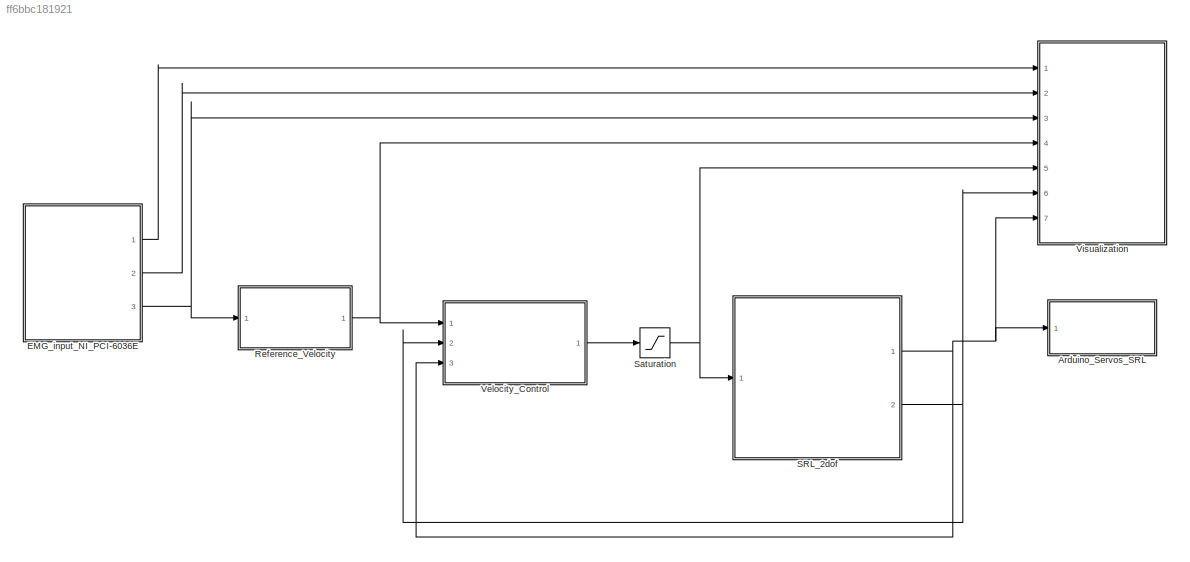
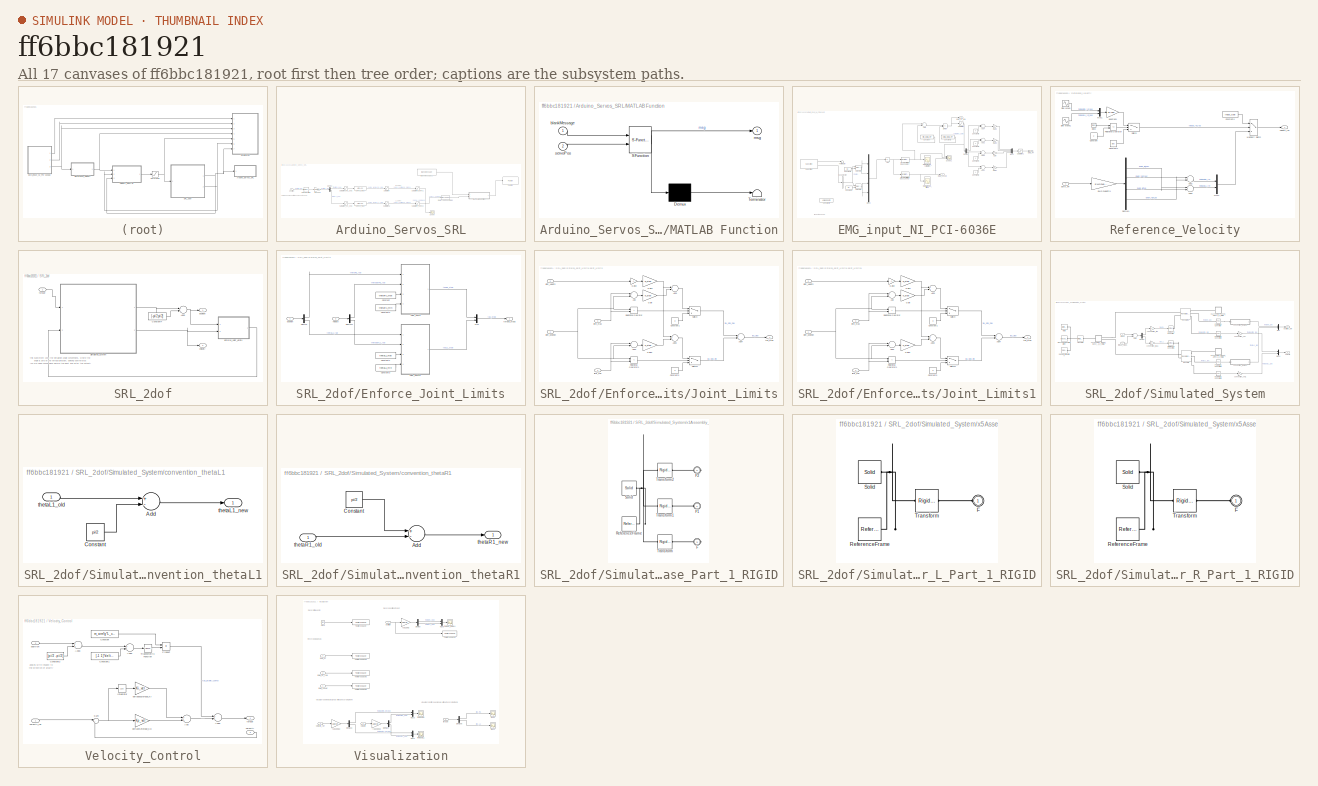
[diagram: thumbnail index - all 17 canvases of the model, root first then tree order]
MODEL slx_ff6bbc181921
KIND model
CONFIG AbsTol = auto
CONFIG EnableMultiTasking = on
CONFIG FixedStep = auto
CONFIG MaxStep = auto
CONFIG MinStep = auto
CONFIG RelTol = 1e-3
CONFIG SampleTimeConstraint = Unconstrained
CONFIG Solver = ode45
CONFIG SolverName = ode45
CONFIG StartTime = 0.0
CONFIG StopTime = T_end
WORKSPACE source: MAT-file member
WORKSPACE SL_ROS_VariableLengthArrays_MaxSizes: struct (value not decoded)
BLOCK [SubSystem] Arduino_Servos_SRL
  LoadFcn = robotics.ros.createSimulinkBus(gcs);
  Ports = [1]
  RequestExecContextInheritance = off
  Variant = off
BLOCK [Reference] Arduino_Servos_SRL/Blank Message1  REF=robotlib/Blank Message
  Ports = [0, 1]
  SourceBlock = robotlib/Blank Message
  SourceLibraryInfo = This block requires Robotics System Toolbox
  SourceProductBaseCode = RO
  SourceProductName = Robotics System Toolbox
  SourceType = ROS Blank Message
BLOCK [DataTypeConversion] Arduino_Servos_SRL/Data Type Conversion
  OutDataTypeStr = int16
  RndMeth = Round
  SaturateOnIntegerOverflow = off
BLOCK [Demux] Arduino_Servos_SRL/Demux
  DisplayOption = bar
  Outputs = 2
  Ports = [1, 2]
BLOCK [SubSystem] Arduino_Servos_SRL/MATLAB Function
  ErrorFcn = Stateflow.Translate.translate
  PermitHierarchicalResolution = ExplicitOnly
  Ports = [2, 1]
  RequestExecContextInheritance = off
  SFBlockType = MATLAB Function
  TreatAsAtomicUnit = on
  Variant = off
BLOCK [Demux] Arduino_Servos_SRL/MATLAB Function/ Demux 
  Outputs = 1
  Ports = [1, 1]
BLOCK [S-Function] Arduino_Servos_SRL/MATLAB Function/ SFunction 
  EnableBusSupport = on
  FunctionName = sf_sfun
  PortCounts = [2 2]
  Ports = [2, 2]
  SFcnIsStateOwnerBlock = off
  SFunctionDeploymentMode = off
  Tag = Stateflow S-Function experiment 2
BLOCK [Terminator] Arduino_Servos_SRL/MATLAB Function/ Terminator 
BLOCK [Inport] Arduino_Servos_SRL/MATLAB Function/blankMessage
  IconDisplay = Port number
BLOCK [Outport] Arduino_Servos_SRL/MATLAB Function/msg
  IconDisplay = Port number
BLOCK [Inport] Arduino_Servos_SRL/MATLAB Function/servoPos
  IconDisplay = Port number
  Port = 2
BLOCK [Reference] Arduino_Servos_SRL/Publish  REF=robotlib/Publish
  Ports = [1]
  SourceBlock = robotlib/Publish
  SourceLibraryInfo = This block requires Robotics System Toolbox
  SourceProductBaseCode = RO
  SourceProductName = Robotics System Toolbox
  SourceType = ROS Publish
BLOCK [RateTransition] Arduino_Servos_SRL/Rate Transition
  Deterministic = off
  OutPortSampleTime = 0.008
BLOCK [Saturate] Arduino_Servos_SRL/Saturation
  InputPortMap = u0
  LowerLimit = 20
  Ports = [1, 1]
  UpperLimit = 160
BLOCK [Saturate] Arduino_Servos_SRL/Saturation2
  InputPortMap = u0
  LowerLimit = 20
  Ports = [1, 1]
  UpperLimit = 160
BLOCK [Saturate] Arduino_Servos_SRL/Saturation_L1_deg
  InputPortMap = u0
  LowerLimit = thetaL1_min/pi*180
  Ports = [1, 1]
  UpperLimit = thetaL1_max/pi*180
BLOCK [Saturate] Arduino_Servos_SRL/Saturation_R1_deg
  InputPortMap = u0
  LowerLimit = thetaR1_min/pi*180
  Ports = [1, 1]
  UpperLimit = thetaR1_max/pi*180
BLOCK [Saturate] Arduino_Servos_SRL/Saturation_Servo1
  InputPortMap = u0
  LowerLimit = 0
  Ports = [1, 1]
  UpperLimit = 180
BLOCK [Saturate] Arduino_Servos_SRL/Saturation_Servo3
  InputPortMap = u0
  LowerLimit = 0
  Ports = [1, 1]
  UpperLimit = 180
BLOCK [Scope] Arduino_Servos_SRL/Scope
  NumInputPorts = 1
  Ports = [1]
  ScopeSpecificationString = Simulink.scopes.TimeScopeBlockCfg('CurrentConfiguration', extmgr.ConfigurationSet(extmgr.Configuration('Core','General UI',true),extmgr.Configuration('Core','Source UI',true),extmgr.Configuration('Sources','WiredSimulink',true,'DataLoggingVariableName','ScopeData1'),extmgr.Configuration('Visuals','Time Domain',true,'SerializedDisplays',{struct('MinYLimReal','36.4349','MaxYLimReal','95.95168','YLab...<+1405ch>
BLOCK [Fcn] Arduino_Servos_SRL/Servo1_map
  Expr = u*m1+q1
BLOCK [Fcn] Arduino_Servos_SRL/Servo3_map
  Expr = u*m3+q3
BLOCK [Inport] Arduino_Servos_SRL/position
  IconDisplay = Port number
BLOCK [Gain] Arduino_Servos_SRL/rad2deg
  Gain = 180/pi
  OutDataTypeStr = Inherit: Inherit via internal rule
  ParamDataTypeStr = Inherit: Inherit via internal rule
  SaturateOnIntegerOverflow = off
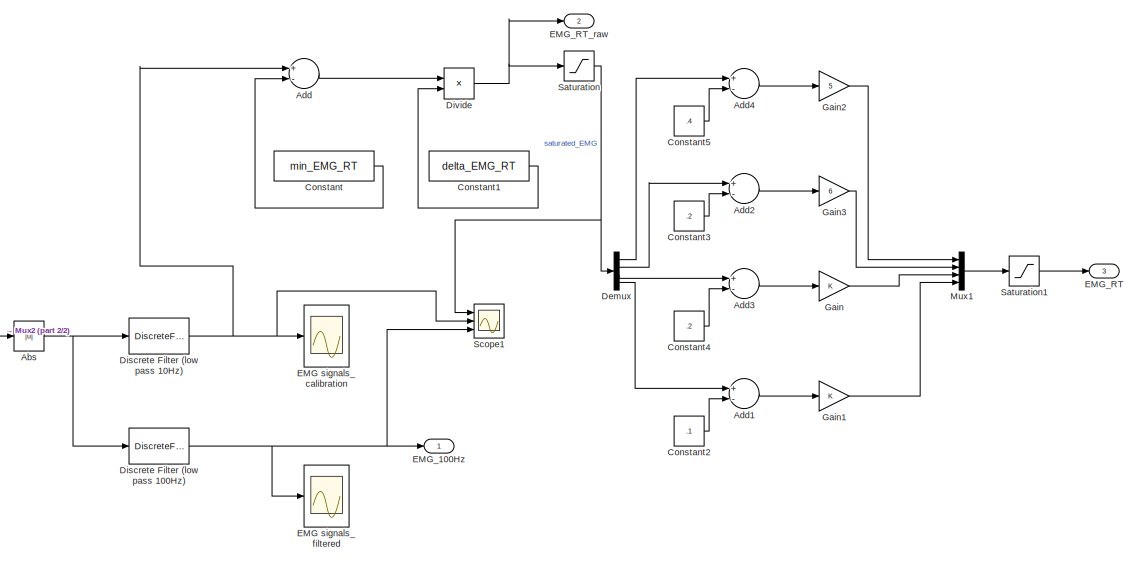
[diagram: EMG_input_NI_PCI-6036E - part 1/2, middle right region]
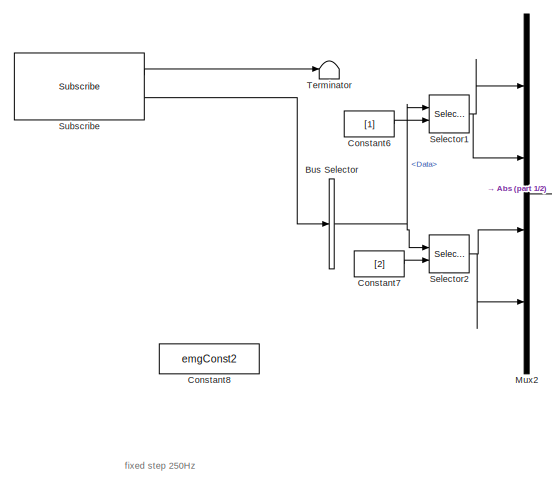
[diagram: EMG_input_NI_PCI-6036E - part 2/2, bottom left region]
BLOCK [SubSystem] EMG_input_NI_PCI-6036E
  Ports = [0, 3]
  RequestExecContextInheritance = off
  Variant = off
BLOCK [Abs] EMG_input_NI_PCI-6036E/Abs
  SaturateOnIntegerOverflow = off
BLOCK [Sum] EMG_input_NI_PCI-6036E/Add
  InputSameDT = off
  Inputs = +-
  OutDataTypeStr = Inherit: Inherit via internal rule
  Ports = [2, 1]
  SaturateOnIntegerOverflow = off
BLOCK [Sum] EMG_input_NI_PCI-6036E/Add1
  InputSameDT = off
  Inputs = +-
  OutDataTypeStr = Inherit: Inherit via internal rule
  Ports = [2, 1]
  SaturateOnIntegerOverflow = off
BLOCK [Sum] EMG_input_NI_PCI-6036E/Add2
  InputSameDT = off
  Inputs = +-
  OutDataTypeStr = Inherit: Inherit via internal rule
  Ports = [2, 1]
  SaturateOnIntegerOverflow = off
BLOCK [Sum] EMG_input_NI_PCI-6036E/Add3
  InputSameDT = off
  Inputs = +-
  OutDataTypeStr = Inherit: Inherit via internal rule
  Ports = [2, 1]
  SaturateOnIntegerOverflow = off
BLOCK [Sum] EMG_input_NI_PCI-6036E/Add4
  InputSameDT = off
  Inputs = +-
  OutDataTypeStr = Inherit: Inherit via internal rule
  Ports = [2, 1]
  SaturateOnIntegerOverflow = off
BLOCK [BusSelector] EMG_input_NI_PCI-6036E/Bus Selector
  OutputAsBus = off
  OutputSignals = Data
  Ports = [1, 1]
BLOCK [Constant] EMG_input_NI_PCI-6036E/Constant
  Value = min_EMG_RT
BLOCK [Constant] EMG_input_NI_PCI-6036E/Constant1
  Value = delta_EMG_RT
BLOCK [Constant] EMG_input_NI_PCI-6036E/Constant2
  Value = .1
BLOCK [Constant] EMG_input_NI_PCI-6036E/Constant3
  Value = .2
BLOCK [Constant] EMG_input_NI_PCI-6036E/Constant4
  Value = .2
BLOCK [Constant] EMG_input_NI_PCI-6036E/Constant5
  Value = .4
BLOCK [Constant] EMG_input_NI_PCI-6036E/Constant6
  Value = [1]
BLOCK [Constant] EMG_input_NI_PCI-6036E/Constant7
  Value = [2]
BLOCK [Constant] EMG_input_NI_PCI-6036E/Constant8
  OutDataTypeStr = int16
  Value = emgConst2
  VectorParams1D = off
BLOCK [Demux] EMG_input_NI_PCI-6036E/Demux
  DisplayOption = bar
  Ports = [1, 4]
BLOCK [DiscreteFilter] EMG_input_NI_PCI-6036E/Discrete Filter (low pass 100Hz)
  Denominator = A_butter_low
  InputPortMap = u0
  Numerator = B_butter_low
  Ports = [1, 1]
BLOCK [DiscreteFilter] EMG_input_NI_PCI-6036E/Discrete Filter (low pass 10Hz)
  Denominator = A_butter_cal
  InputPortMap = u0
  Numerator = B_butter_cal
  Ports = [1, 1]
BLOCK [Product] EMG_input_NI_PCI-6036E/Divide
  InputSameDT = off
  Inputs = */
  OutDataTypeStr = Inherit: Inherit via internal rule
  Ports = [2, 1]
  RndMeth = Floor
  SaturateOnIntegerOverflow = off
BLOCK [Scope] EMG_input_NI_PCI-6036E/EMG signals_calibration
  NumInputPorts = 1
  Ports = [1]
  ScopeSpecificationString = Simulink.scopes.TimeScopeBlockCfg('CurrentConfiguration', extmgr.ConfigurationSet(extmgr.Configuration('Core','General UI',true),extmgr.Configuration('Core','Source UI',true),extmgr.Configuration('Sources','WiredSimulink',true,'DataLoggingVariableName','ScopeData10','DataLoggingSaveFormat','Array','DataLoggingDecimation','1','DataLoggingDecimateData',true),extmgr.Configuration('Visuals','Time Doma...<+1748ch>
BLOCK [Scope] EMG_input_NI_PCI-6036E/EMG signals_filtered
  NumInputPorts = 1
  Ports = [1]
  ScopeSpecificationString = Simulink.scopes.TimeScopeBlockCfg('CurrentConfiguration', extmgr.ConfigurationSet(extmgr.Configuration('Core','General UI',true),extmgr.Configuration('Core','Source UI',true),extmgr.Configuration('Sources','WiredSimulink',true,'DataLoggingVariableName','ScopeData6','DataLoggingSaveFormat','Array','DataLoggingDecimation','1','DataLoggingDecimateData',true),extmgr.Configuration('Visuals','Time Domai...<+1754ch>
BLOCK [Outport] EMG_input_NI_PCI-6036E/EMG_100Hz
  IconDisplay = Port number
BLOCK [Outport] EMG_input_NI_PCI-6036E/EMG_RT
  IconDisplay = Port number
  Port = 3
BLOCK [Outport] EMG_input_NI_PCI-6036E/EMG_RT_raw
  IconDisplay = Port number
  Port = 2
BLOCK [Gain] EMG_input_NI_PCI-6036E/Gain
  OutDataTypeStr = Inherit: Inherit via internal rule
  ParamDataTypeStr = Inherit: Inherit via internal rule
  SaturateOnIntegerOverflow = off
BLOCK [Gain] EMG_input_NI_PCI-6036E/Gain1
  OutDataTypeStr = Inherit: Inherit via internal rule
  ParamDataTypeStr = Inherit: Inherit via internal rule
  SaturateOnIntegerOverflow = off
BLOCK [Gain] EMG_input_NI_PCI-6036E/Gain2
  Gain = 5
  OutDataTypeStr = Inherit: Inherit via internal rule
  ParamDataTypeStr = Inherit: Inherit via internal rule
  SaturateOnIntegerOverflow = off
BLOCK [Gain] EMG_input_NI_PCI-6036E/Gain3
  Gain = 6
  OutDataTypeStr = Inherit: Inherit via internal rule
  ParamDataTypeStr = Inherit: Inherit via internal rule
  SaturateOnIntegerOverflow = off
BLOCK [Mux] EMG_input_NI_PCI-6036E/Mux1
  DisplayOption = bar
  Ports = [4, 1]
BLOCK [Mux] EMG_input_NI_PCI-6036E/Mux2
  DisplayOption = bar
  Ports = [4, 1]
BLOCK [Saturate] EMG_input_NI_PCI-6036E/Saturation
  InputPortMap = u0
  LowerLimit = 0
  Ports = [1, 1]
  UpperLimit = 1
BLOCK [Saturate] EMG_input_NI_PCI-6036E/Saturation1
  InputPortMap = u0
  LowerLimit = 0
  Ports = [1, 1]
  UpperLimit = 1
BLOCK [Scope] EMG_input_NI_PCI-6036E/Scope1
  NumInputPorts = 3
  Ports = [3]
  ScopeSpecificationString = Simulink.scopes.TimeScopeBlockCfg('CurrentConfiguration', extmgr.ConfigurationSet(extmgr.Configuration('Core','General UI',true),extmgr.Configuration('Core','Source UI',true),extmgr.Configuration('Sources','WiredSimulink',true,'DataLoggingVariableName','ScopeData1'),extmgr.Configuration('Visuals','Time Domain',true,'SerializedDisplays',{struct('MinYLimReal','-0.32678','MaxYLimReal','3.06436','YLab...<+1775ch>
BLOCK [Selector] EMG_input_NI_PCI-6036E/Selector1
  IndexOptions = Index vector (port)
  Indices = [1 3]
  OutputSizes = 1
  Ports = [2, 1]
BLOCK [Selector] EMG_input_NI_PCI-6036E/Selector2
  IndexOptions = Index vector (port)
  Indices = [1 3]
  OutputSizes = 1
  Ports = [2, 1]
BLOCK [Reference] EMG_input_NI_PCI-6036E/Subscribe  REF=robotlib/Subscribe
  Ports = [0, 2]
  SourceBlock = robotlib/Subscribe
  SourceLibraryInfo = This block requires Robotics System Toolbox
  SourceProductBaseCode = RO
  SourceProductName = Robotics System Toolbox
  SourceType = ROS Subscribe
BLOCK [Terminator] EMG_input_NI_PCI-6036E/Terminator
BLOCK [SubSystem] Reference_Velocity
  Ports = [1, 1]
  RequestExecContextInheritance = off
  Variant = off
BLOCK [Sum] Reference_Velocity/Add2
  InputSameDT = off
  Inputs = +-
  OutDataTypeStr = Inherit: Inherit via internal rule
  Ports = [2, 1]
  SaturateOnIntegerOverflow = off
BLOCK [Sum] Reference_Velocity/Add3
  InputSameDT = off
  Inputs = -+
  OutDataTypeStr = Inherit: Inherit via internal rule
  Ports = [2, 1]
  SaturateOnIntegerOverflow = off
BLOCK [Clock] Reference_Velocity/Clock
BLOCK [Constant] Reference_Velocity/Constant
  Value = 2
BLOCK [Constant] Reference_Velocity/Constant1
  Value = [0 0]
BLOCK [Constant] Reference_Velocity/Constant4
  Value = input_type
BLOCK [Demux] Reference_Velocity/Demux1
  DisplayOption = bar
  Ports = [1, 4]
BLOCK [Gain] Reference_Velocity/EMG2velocity1
  Gain = EMG2vel_gain
  OutDataTypeStr = Inherit: Inherit via internal rule
  ParamDataTypeStr = Inherit: Inherit via internal rule
  SaturateOnIntegerOverflow = off
BLOCK [Inport] Reference_Velocity/EMG_RT
  IconDisplay = Port number
BLOCK [MultiPortSwitch] Reference_Velocity/Multiport Switch
  InputSameDT = off
  Inputs = 2
  Ports = [3, 1]
  SaturateOnIntegerOverflow = off
BLOCK [Mux] Reference_Velocity/Mux1
  DisplayOption = bar
  Inputs = 2
  Ports = [2, 1]
BLOCK [Mux] Reference_Velocity/Mux4
  DisplayOption = bar
  Inputs = 2
  Ports = [2, 1]
BLOCK [RelationalOperator] Reference_Velocity/Relational Operator
  InputSameDT = off
  Operator = <=
  OutDataTypeStr = boolean
  Ports = [2, 1]
BLOCK [Sin] Reference_Velocity/Sine Wave
  Amplitude = -40
  Frequency = 2*pi/(4)
  Ports = [0, 1]
  SampleTime = 0
BLOCK [Sin] Reference_Velocity/Sine Wave1
  Amplitude = -40
  Frequency = 2*pi/(4)
  Ports = [0, 1]
  SampleTime = 0
BLOCK [Switch] Reference_Velocity/Switch
  Criteria = u2 > Threshold
  InputSameDT = off
  SaturateOnIntegerOverflow = off
BLOCK [Gain] Reference_Velocity/deg2rad1
  Gain = pi/180
  OutDataTypeStr = Inherit: Inherit via internal rule
  ParamDataTypeStr = Inherit: Inherit via internal rule
  SaturateOnIntegerOverflow = off
BLOCK [Outport] Reference_Velocity/velocity_ref
  IconDisplay = Port number
BLOCK [SubSystem] SRL_2dof
  Ports = [1, 2]
  RequestExecContextInheritance = off
  Variant = off
BLOCK [Sum] SRL_2dof/Add5
  InputSameDT = off
  OutDataTypeStr = Inherit: Inherit via internal rule
  Ports = [2, 1]
  SaturateOnIntegerOverflow = off
BLOCK [Constant] SRL_2dof/Constant4
  Value = [-pi/2 pi/2]
BLOCK [SubSystem] SRL_2dof/Enforce_Joint_Limits
  Ports = [2, 1]
  RequestExecContextInheritance = off
  Variant = off
BLOCK [Constant] SRL_2dof/Enforce_Joint_Limits/Constant
  Value = thetaR1_max
BLOCK [Constant] SRL_2dof/Enforce_Joint_Limits/Constant1
  Value = thetaL1_max
BLOCK [Constant] SRL_2dof/Enforce_Joint_Limits/Constant2
  Value = thetaR1_min
BLOCK [Constant] SRL_2dof/Enforce_Joint_Limits/Constant3
  Value = thetaL1_min
BLOCK [Demux] SRL_2dof/Enforce_Joint_Limits/Demux
  DisplayOption = bar
  Outputs = 2
  Ports = [1, 2]
BLOCK [Demux] SRL_2dof/Enforce_Joint_Limits/Demux1
  DisplayOption = bar
  Outputs = 2
  Ports = [1, 2]
BLOCK [SubSystem] SRL_2dof/Enforce_Joint_Limits/Joint_Limits
  Ports = [4, 1]
  RequestExecContextInheritance = off
  Variant = off
BLOCK [Sum] SRL_2dof/Enforce_Joint_Limits/Joint_Limits/Add
  InputSameDT = off
  Inputs = +-
  OutDataTypeStr = Inherit: Inherit via internal rule
  Ports = [2, 1]
  SaturateOnIntegerOverflow = off
BLOCK [Sum] SRL_2dof/Enforce_Joint_Limits/Joint_Limits/Add1
  InputSameDT = off
  OutDataTypeStr = Inherit: Inherit via internal rule
  Ports = [2, 1]
  SaturateOnIntegerOverflow = off
BLOCK [Sum] SRL_2dof/Enforce_Joint_Limits/Joint_Limits/Add2
  InputSameDT = off
  Inputs = +-
  OutDataTypeStr = Inherit: Inherit via internal rule
  Ports = [2, 1]
  SaturateOnIntegerOverflow = off
BLOCK [Sum] SRL_2dof/Enforce_Joint_Limits/Joint_Limits/Add3
  InputSameDT = off
  OutDataTypeStr = Inherit: Inherit via internal rule
  Ports = [2, 1]
  SaturateOnIntegerOverflow = off
BLOCK [Sum] SRL_2dof/Enforce_Joint_Limits/Joint_Limits/Add4
  InputSameDT = off
  OutDataTypeStr = Inherit: Inherit via internal rule
  Ports = [2, 1]
  SaturateOnIntegerOverflow = off
BLOCK [Constant] SRL_2dof/Enforce_Joint_Limits/Joint_Limits/Constant1
  Value = 0
BLOCK [Constant] SRL_2dof/Enforce_Joint_Limits/Joint_Limits/Constant3
  Value = 0
BLOCK [Gain] SRL_2dof/Enforce_Joint_Limits/Joint_Limits/Gain
  Gain = k_stop
  OutDataTypeStr = Inherit: Inherit via internal rule
  ParamDataTypeStr = Inherit: Inherit via internal rule
  SaturateOnIntegerOverflow = off
BLOCK [Gain] SRL_2dof/Enforce_Joint_Limits/Joint_Limits/Gain1
  Gain = b_stop
  OutDataTypeStr = Inherit: Inherit via internal rule
  ParamDataTypeStr = Inherit: Inherit via internal rule
  SaturateOnIntegerOverflow = off
BLOCK [Gain] SRL_2dof/Enforce_Joint_Limits/Joint_Limits/Gain2
  Gain = -1
  OutDataTypeStr = Inherit: Inherit via internal rule
  ParamDataTypeStr = Inherit: Inherit via internal rule
  SaturateOnIntegerOverflow = off
BLOCK [Gain] SRL_2dof/Enforce_Joint_Limits/Joint_Limits/Gain3
  Gain = k_stop
  OutDataTypeStr = Inherit: Inherit via internal rule
  ParamDataTypeStr = Inherit: Inherit via internal rule
  SaturateOnIntegerOverflow = off
BLOCK [RelationalOperator] SRL_2dof/Enforce_Joint_Limits/Joint_Limits/Relational Operator
  InputSameDT = off
  Operator = >
  OutDataTypeStr = boolean
  Ports = [2, 1]
BLOCK [RelationalOperator] SRL_2dof/Enforce_Joint_Limits/Joint_Limits/Relational Operator1
  InputSameDT = off
  Operator = <
  OutDataTypeStr = boolean
  Ports = [2, 1]
BLOCK [Switch] SRL_2dof/Enforce_Joint_Limits/Joint_Limits/Switch
  Criteria = u2 > Threshold
  InputSameDT = off
  SaturateOnIntegerOverflow = off
BLOCK [Switch] SRL_2dof/Enforce_Joint_Limits/Joint_Limits/Switch1
  Criteria = u2 > Threshold
  InputSameDT = off
  SaturateOnIntegerOverflow = off
BLOCK [Inport] SRL_2dof/Enforce_Joint_Limits/Joint_Limits/joint_position
  IconDisplay = Port number
BLOCK [Inport] SRL_2dof/Enforce_Joint_Limits/Joint_Limits/joint_velocity
  IconDisplay = Port number
  Port = 2
BLOCK [Inport] SRL_2dof/Enforce_Joint_Limits/Joint_Limits/limit_max
  IconDisplay = Port number
  Port = 3
BLOCK [Inport] SRL_2dof/Enforce_Joint_Limits/Joint_Limits/limit_min
  IconDisplay = Port number
  Port = 4
BLOCK [Outport] SRL_2dof/Enforce_Joint_Limits/Joint_Limits/tau_stop
  IconDisplay = Port number
BLOCK [SubSystem] SRL_2dof/Enforce_Joint_Limits/Joint_Limits1
  Ports = [4, 1]
  RequestExecContextInheritance = off
  Variant = off
BLOCK [Sum] SRL_2dof/Enforce_Joint_Limits/Joint_Limits1/Add
  InputSameDT = off
  Inputs = +-
  OutDataTypeStr = Inherit: Inherit via internal rule
  Ports = [2, 1]
  SaturateOnIntegerOverflow = off
BLOCK [Sum] SRL_2dof/Enforce_Joint_Limits/Joint_Limits1/Add1
  InputSameDT = off
  OutDataTypeStr = Inherit: Inherit via internal rule
  Ports = [2, 1]
  SaturateOnIntegerOverflow = off
BLOCK [Sum] SRL_2dof/Enforce_Joint_Limits/Joint_Limits1/Add2
  InputSameDT = off
  Inputs = +-
  OutDataTypeStr = Inherit: Inherit via internal rule
  Ports = [2, 1]
  SaturateOnIntegerOverflow = off
BLOCK [Sum] SRL_2dof/Enforce_Joint_Limits/Joint_Limits1/Add3
  InputSameDT = off
  OutDataTypeStr = Inherit: Inherit via internal rule
  Ports = [2, 1]
  SaturateOnIntegerOverflow = off
BLOCK [Sum] SRL_2dof/Enforce_Joint_Limits/Joint_Limits1/Add4
  InputSameDT = off
  OutDataTypeStr = Inherit: Inherit via internal rule
  Ports = [2, 1]
  SaturateOnIntegerOverflow = off
BLOCK [Constant] SRL_2dof/Enforce_Joint_Limits/Joint_Limits1/Constant1
  Value = 0
BLOCK [Constant] SRL_2dof/Enforce_Joint_Limits/Joint_Limits1/Constant3
  Value = 0
BLOCK [Gain] SRL_2dof/Enforce_Joint_Limits/Joint_Limits1/Gain
  Gain = k_stop
  OutDataTypeStr = Inherit: Inherit via internal rule
  ParamDataTypeStr = Inherit: Inherit via internal rule
  SaturateOnIntegerOverflow = off
BLOCK [Gain] SRL_2dof/Enforce_Joint_Limits/Joint_Limits1/Gain1
  Gain = b_stop
  OutDataTypeStr = Inherit: Inherit via internal rule
  ParamDataTypeStr = Inherit: Inherit via internal rule
  SaturateOnIntegerOverflow = off
BLOCK [Gain] SRL_2dof/Enforce_Joint_Limits/Joint_Limits1/Gain2
  Gain = -1
  OutDataTypeStr = Inherit: Inherit via internal rule
  ParamDataTypeStr = Inherit: Inherit via internal rule
  SaturateOnIntegerOverflow = off
BLOCK [Gain] SRL_2dof/Enforce_Joint_Limits/Joint_Limits1/Gain3
  Gain = k_stop
  OutDataTypeStr = Inherit: Inherit via internal rule
  ParamDataTypeStr = Inherit: Inherit via internal rule
  SaturateOnIntegerOverflow = off
BLOCK [RelationalOperator] SRL_2dof/Enforce_Joint_Limits/Joint_Limits1/Relational Operator
  InputSameDT = off
  Operator = >
  OutDataTypeStr = boolean
  Ports = [2, 1]
BLOCK [RelationalOperator] SRL_2dof/Enforce_Joint_Limits/Joint_Limits1/Relational Operator1
  InputSameDT = off
  Operator = <
  OutDataTypeStr = boolean
  Ports = [2, 1]
BLOCK [Switch] SRL_2dof/Enforce_Joint_Limits/Joint_Limits1/Switch
  Criteria = u2 > Threshold
  InputSameDT = off
  SaturateOnIntegerOverflow = off
BLOCK [Switch] SRL_2dof/Enforce_Joint_Limits/Joint_Limits1/Switch1
  Criteria = u2 > Threshold
  InputSameDT = off
  SaturateOnIntegerOverflow = off
BLOCK [Inport] SRL_2dof/Enforce_Joint_Limits/Joint_Limits1/joint_position
  IconDisplay = Port number
BLOCK [Inport] SRL_2dof/Enforce_Joint_Limits/Joint_Limits1/joint_velocity
  IconDisplay = Port number
  Port = 2
BLOCK [Inport] SRL_2dof/Enforce_Joint_Limits/Joint_Limits1/limit_max
  IconDisplay = Port number
  Port = 3
BLOCK [Inport] SRL_2dof/Enforce_Joint_Limits/Joint_Limits1/limit_min
  IconDisplay = Port number
  Port = 4
BLOCK [Outport] SRL_2dof/Enforce_Joint_Limits/Joint_Limits1/tau_stop
  IconDisplay = Port number
BLOCK [Mux] SRL_2dof/Enforce_Joint_Limits/Mux
  DisplayOption = bar
  Inputs = 2
  Ports = [2, 1]
BLOCK [Inport] SRL_2dof/Enforce_Joint_Limits/position
  IconDisplay = Port number
BLOCK [Outport] SRL_2dof/Enforce_Joint_Limits/torque_stops
  IconDisplay = Port number
BLOCK [Inport] SRL_2dof/Enforce_Joint_Limits/velocity
  IconDisplay = Port number
  Port = 2
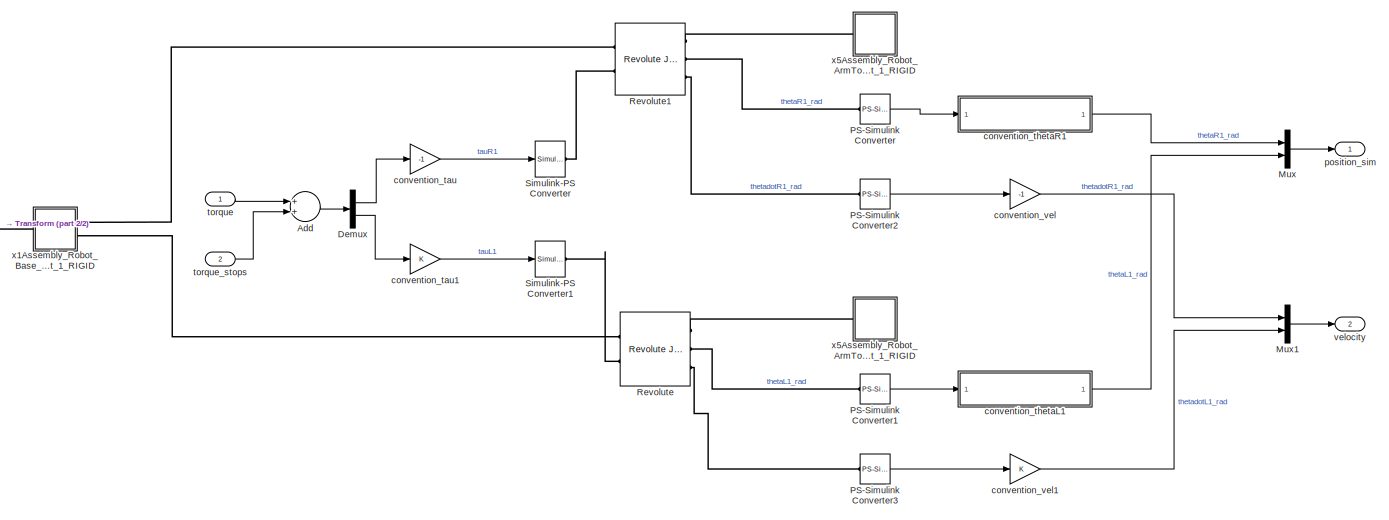
[diagram: SRL_2dof/Simulated_System - part 1/2, most of the canvas]
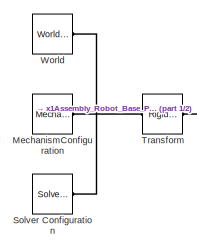
[diagram: SRL_2dof/Simulated_System - part 2/2, middle left region]
BLOCK [SubSystem] SRL_2dof/Simulated_System
  Ports = [2, 2]
  RequestExecContextInheritance = off
  Variant = off
BLOCK [Sum] SRL_2dof/Simulated_System/Add
  InputSameDT = off
  OutDataTypeStr = Inherit: Inherit via internal rule
  Ports = [2, 1]
  SaturateOnIntegerOverflow = off
BLOCK [Demux] SRL_2dof/Simulated_System/Demux
  DisplayOption = bar
  Outputs = 2
  Ports = [1, 2]
BLOCK [Reference] SRL_2dof/Simulated_System/MechanismConfiguration  REF=sm_lib/Utilities/Mechanism
Configuration
  Ports = [0, 0, 0, 0, 0, 0, 1]
  SourceBlock = sm_lib/Utilities/Mechanism\nConfiguration
  SourceProductBaseCode = MS
  SourceProductName = Simscape Multibody
  SourceType = Mechanism\nConfiguration
BLOCK [Mux] SRL_2dof/Simulated_System/Mux
  DisplayOption = bar
  Inputs = 2
  Ports = [2, 1]
BLOCK [Mux] SRL_2dof/Simulated_System/Mux1
  DisplayOption = bar
  Inputs = 2
  Ports = [2, 1]
BLOCK [Reference] SRL_2dof/Simulated_System/PS-Simulink Converter  REF=nesl_utility/PS-Simulink
Converter
  Ports = [0, 1, 0, 0, 0, 1]
  SourceBlock = nesl_utility/PS-Simulink\nConverter
  SourceProductBaseCode = SS
  SourceProductName = Simscape
  SourceType = PS-Simulink\nConverter
BLOCK [Reference] SRL_2dof/Simulated_System/PS-Simulink Converter1  REF=nesl_utility/PS-Simulink
Converter
  Ports = [0, 1, 0, 0, 0, 1]
  SourceBlock = nesl_utility/PS-Simulink\nConverter
  SourceProductBaseCode = SS
  SourceProductName = Simscape
  SourceType = PS-Simulink\nConverter
BLOCK [Reference] SRL_2dof/Simulated_System/PS-Simulink Converter2  REF=nesl_utility/PS-Simulink
Converter
  Ports = [0, 1, 0, 0, 0, 1]
  SourceBlock = nesl_utility/PS-Simulink\nConverter
  SourceProductBaseCode = SS
  SourceProductName = Simscape
  SourceType = PS-Simulink\nConverter
BLOCK [Reference] SRL_2dof/Simulated_System/PS-Simulink Converter3  REF=nesl_utility/PS-Simulink
Converter
  Ports = [0, 1, 0, 0, 0, 1]
  SourceBlock = nesl_utility/PS-Simulink\nConverter
  SourceProductBaseCode = SS
  SourceProductName = Simscape
  SourceType = PS-Simulink\nConverter
BLOCK [Reference] SRL_2dof/Simulated_System/Revolute  REF=sm_lib/Joints/Revolute Joint
  Ports = [0, 0, 0, 0, 0, 2, 3]
  SourceBlock = sm_lib/Joints/Revolute Joint
  SourceProductBaseCode = MS
  SourceProductName = Simscape Multibody
  SourceType = Revolute Joint
BLOCK [Reference] SRL_2dof/Simulated_System/Revolute1  REF=sm_lib/Joints/Revolute Joint
  Ports = [0, 0, 0, 0, 0, 2, 3]
  SourceBlock = sm_lib/Joints/Revolute Joint
  SourceProductBaseCode = MS
  SourceProductName = Simscape Multibody
  SourceType = Revolute Joint
BLOCK [Reference] SRL_2dof/Simulated_System/Simulink-PS Converter  REF=nesl_utility/Simulink-PS
Converter
  Ports = [1, 0, 0, 0, 0, 0, 1]
  SourceBlock = nesl_utility/Simulink-PS\nConverter
  SourceProductBaseCode = SS
  SourceProductName = Simscape
  SourceType = Simulink-PS\nConverter
BLOCK [Reference] SRL_2dof/Simulated_System/Simulink-PS Converter1  REF=nesl_utility/Simulink-PS
Converter
  Ports = [1, 0, 0, 0, 0, 0, 1]
  SourceBlock = nesl_utility/Simulink-PS\nConverter
  SourceProductBaseCode = SS
  SourceProductName = Simscape
  SourceType = Simulink-PS\nConverter
BLOCK [Reference] SRL_2dof/Simulated_System/Solver Configuration  REF=nesl_utility/Solver
Configuration
  Ports = [0, 0, 0, 0, 0, 0, 1]
  SourceBlock = nesl_utility/Solver\nConfiguration
  SourceProductBaseCode = SS
  SourceProductName = Simscape
  SourceType = Solver\nConfiguration
BLOCK [Reference] SRL_2dof/Simulated_System/Transform  REF=sm_lib/Frames and
Transforms/Rigid
Transform
  Ports = [0, 0, 0, 0, 0, 1, 1]
  SourceBlock = sm_lib/Frames and\nTransforms/Rigid\nTransform
  SourceProductBaseCode = MS
  SourceProductName = Simscape Multibody
  SourceType = Rigid\nTransform
BLOCK [Reference] SRL_2dof/Simulated_System/World  REF=sm_lib/Frames and
Transforms/World Frame
  Ports = [0, 0, 0, 0, 0, 0, 1]
  SourceBlock = sm_lib/Frames and\nTransforms/World Frame
  SourceProductBaseCode = MS
  SourceProductName = Simscape Multibody
  SourceType = World Frame
BLOCK [Gain] SRL_2dof/Simulated_System/convention_tau
  Gain = -1
  OutDataTypeStr = Inherit: Inherit via internal rule
  ParamDataTypeStr = Inherit: Inherit via internal rule
  SaturateOnIntegerOverflow = off
BLOCK [Gain] SRL_2dof/Simulated_System/convention_tau1
  OutDataTypeStr = Inherit: Inherit via internal rule
  ParamDataTypeStr = Inherit: Inherit via internal rule
  SaturateOnIntegerOverflow = off
BLOCK [SubSystem] SRL_2dof/Simulated_System/convention_thetaL1
  Ports = [1, 1]
  RequestExecContextInheritance = off
  Variant = off
BLOCK [Sum] SRL_2dof/Simulated_System/convention_thetaL1/Add
  InputSameDT = off
  Inputs = +-
  OutDataTypeStr = Inherit: Inherit via internal rule
  Ports = [2, 1]
  SaturateOnIntegerOverflow = off
BLOCK [Constant] SRL_2dof/Simulated_System/convention_thetaL1/Constant
  Value = pi/2
BLOCK [Outport] SRL_2dof/Simulated_System/convention_thetaL1/thetaL1_new
  IconDisplay = Port number
BLOCK [Inport] SRL_2dof/Simulated_System/convention_thetaL1/thetaL1_old
  IconDisplay = Port number
BLOCK [SubSystem] SRL_2dof/Simulated_System/convention_thetaR1
  Ports = [1, 1]
  RequestExecContextInheritance = off
  Variant = off
BLOCK [Sum] SRL_2dof/Simulated_System/convention_thetaR1/Add
  InputSameDT = off
  Inputs = +-
  OutDataTypeStr = Inherit: Inherit via internal rule
  Ports = [2, 1]
  SaturateOnIntegerOverflow = off
BLOCK [Constant] SRL_2dof/Simulated_System/convention_thetaR1/Constant
  Value = pi/2
BLOCK [Outport] SRL_2dof/Simulated_System/convention_thetaR1/thetaR1_new
  IconDisplay = Port number
BLOCK [Inport] SRL_2dof/Simulated_System/convention_thetaR1/thetaR1_old
  IconDisplay = Port number
BLOCK [Gain] SRL_2dof/Simulated_System/convention_vel
  Gain = -1
  OutDataTypeStr = Inherit: Inherit via internal rule
  ParamDataTypeStr = Inherit: Inherit via internal rule
  SaturateOnIntegerOverflow = off
BLOCK [Gain] SRL_2dof/Simulated_System/convention_vel1
  OutDataTypeStr = Inherit: Inherit via internal rule
  ParamDataTypeStr = Inherit: Inherit via internal rule
  SaturateOnIntegerOverflow = off
BLOCK [Outport] SRL_2dof/Simulated_System/position_sim
  IconDisplay = Port number
BLOCK [Inport] SRL_2dof/Simulated_System/torque
  IconDisplay = Port number
BLOCK [Inport] SRL_2dof/Simulated_System/torque_stops
  IconDisplay = Port number
  Port = 2
BLOCK [Outport] SRL_2dof/Simulated_System/velocity
  IconDisplay = Port number
  Port = 2
BLOCK [SubSystem] SRL_2dof/Simulated_System/x1Assembly_Robot_Base_Part_1_RIGID
  Ports = [0, 0, 0, 0, 0, 1, 2]
  RequestExecContextInheritance = off
  Variant = off
BLOCK [PMIOPort] SRL_2dof/Simulated_System/x1Assembly_Robot_Base_Part_1_RIGID/F
  Port = 3
  Side = Right
BLOCK [PMIOPort] SRL_2dof/Simulated_System/x1Assembly_Robot_Base_Part_1_RIGID/F1
  Port = 1
  Side = Left
BLOCK [PMIOPort] SRL_2dof/Simulated_System/x1Assembly_Robot_Base_Part_1_RIGID/F2
  Port = 2
  Side = Right
BLOCK [Reference] SRL_2dof/Simulated_System/x1Assembly_Robot_Base_Part_1_RIGID/ReferenceFrame  REF=sm_lib/Frames and
Transforms/Reference
Frame
  Ports = [0, 0, 0, 0, 0, 0, 1]
  SourceBlock = sm_lib/Frames and\nTransforms/Reference\nFrame
  SourceProductBaseCode = MS
  SourceProductName = Simscape Multibody
  SourceType = Reference\nFrame
BLOCK [Reference] SRL_2dof/Simulated_System/x1Assembly_Robot_Base_Part_1_RIGID/Solid  REF=sm_lib/Body Elements/Solid
  Ports = [0, 0, 0, 0, 0, 0, 1]
  SourceBlock = sm_lib/Body Elements/Solid
  SourceProductBaseCode = MS
  SourceProductName = Simscape Multibody
  SourceType = Solid
BLOCK [Reference] SRL_2dof/Simulated_System/x1Assembly_Robot_Base_Part_1_RIGID/Transform  REF=sm_lib/Frames and
Transforms/Rigid
Transform
  Ports = [0, 0, 0, 0, 0, 1, 1]
  SourceBlock = sm_lib/Frames and\nTransforms/Rigid\nTransform
  SourceProductBaseCode = MS
  SourceProductName = Simscape Multibody
  SourceType = Rigid\nTransform
BLOCK [Reference] SRL_2dof/Simulated_System/x1Assembly_Robot_Base_Part_1_RIGID/Transform1  REF=sm_lib/Frames and
Transforms/Rigid
Transform
  Ports = [0, 0, 0, 0, 0, 1, 1]
  SourceBlock = sm_lib/Frames and\nTransforms/Rigid\nTransform
  SourceProductBaseCode = MS
  SourceProductName = Simscape Multibody
  SourceType = Rigid\nTransform
BLOCK [Reference] SRL_2dof/Simulated_System/x1Assembly_Robot_Base_Part_1_RIGID/Transform2  REF=sm_lib/Frames and
Transforms/Rigid
Transform
  Ports = [0, 0, 0, 0, 0, 1, 1]
  SourceBlock = sm_lib/Frames and\nTransforms/Rigid\nTransform
  SourceProductBaseCode = MS
  SourceProductName = Simscape Multibody
  SourceType = Rigid\nTransform
BLOCK [SubSystem] SRL_2dof/Simulated_System/x5Assembly_Robot_ArmTotalShoulder_L_Part_1_RIGID
  Ports = [0, 0, 0, 0, 0, 1]
  RequestExecContextInheritance = off
  Variant = off
BLOCK [PMIOPort] SRL_2dof/Simulated_System/x5Assembly_Robot_ArmTotalShoulder_L_Part_1_RIGID/F
  Port = 1
  Side = Left
BLOCK [Reference] SRL_2dof/Simulated_System/x5Assembly_Robot_ArmTotalShoulder_L_Part_1_RIGID/ReferenceFrame  REF=sm_lib/Frames and
Transforms/Reference
Frame
  Ports = [0, 0, 0, 0, 0, 0, 1]
  SourceBlock = sm_lib/Frames and\nTransforms/Reference\nFrame
  SourceProductBaseCode = MS
  SourceProductName = Simscape Multibody
  SourceType = Reference\nFrame
BLOCK [Reference] SRL_2dof/Simulated_System/x5Assembly_Robot_ArmTotalShoulder_L_Part_1_RIGID/Solid  REF=sm_lib/Body Elements/Solid
  Ports = [0, 0, 0, 0, 0, 0, 1]
  SourceBlock = sm_lib/Body Elements/Solid
  SourceProductBaseCode = MS
  SourceProductName = Simscape Multibody
  SourceType = Solid
BLOCK [Reference] SRL_2dof/Simulated_System/x5Assembly_Robot_ArmTotalShoulder_L_Part_1_RIGID/Transform  REF=sm_lib/Frames and
Transforms/Rigid
Transform
  Ports = [0, 0, 0, 0, 0, 1, 1]
  SourceBlock = sm_lib/Frames and\nTransforms/Rigid\nTransform
  SourceProductBaseCode = MS
  SourceProductName = Simscape Multibody
  SourceType = Rigid\nTransform
BLOCK [SubSystem] SRL_2dof/Simulated_System/x5Assembly_Robot_ArmTotalShoulder_R_Part_1_RIGID
  Ports = [0, 0, 0, 0, 0, 1]
  RequestExecContextInheritance = off
  Variant = off
BLOCK [PMIOPort] SRL_2dof/Simulated_System/x5Assembly_Robot_ArmTotalShoulder_R_Part_1_RIGID/F
  Port = 1
  Side = Left
BLOCK [Reference] SRL_2dof/Simulated_System/x5Assembly_Robot_ArmTotalShoulder_R_Part_1_RIGID/ReferenceFrame  REF=sm_lib/Frames and
Transforms/Reference
Frame
  Ports = [0, 0, 0, 0, 0, 0, 1]
  SourceBlock = sm_lib/Frames and\nTransforms/Reference\nFrame
  SourceProductBaseCode = MS
  SourceProductName = Simscape Multibody
  SourceType = Reference\nFrame
BLOCK [Reference] SRL_2dof/Simulated_System/x5Assembly_Robot_ArmTotalShoulder_R_Part_1_RIGID/Solid  REF=sm_lib/Body Elements/Solid
  Ports = [0, 0, 0, 0, 0, 0, 1]
  SourceBlock = sm_lib/Body Elements/Solid
  SourceProductBaseCode = MS
  SourceProductName = Simscape Multibody
  SourceType = Solid
BLOCK [Reference] SRL_2dof/Simulated_System/x5Assembly_Robot_ArmTotalShoulder_R_Part_1_RIGID/Transform  REF=sm_lib/Frames and
Transforms/Rigid
Transform
  Ports = [0, 0, 0, 0, 0, 1, 1]
  SourceBlock = sm_lib/Frames and\nTransforms/Rigid\nTransform
  SourceProductBaseCode = MS
  SourceProductName = Simscape Multibody
  SourceType = Rigid\nTransform
BLOCK [Outport] SRL_2dof/position
  IconDisplay = Port number
BLOCK [Inport] SRL_2dof/torque
  IconDisplay = Port number
BLOCK [Outport] SRL_2dof/velocity
  IconDisplay = Port number
  Port = 2
BLOCK [Saturate] Saturation
  InputPortMap = u0
  LowerLimit = -tau_max_cont
  Ports = [1, 1]
  UpperLimit = tau_max_cont
BLOCK [SubSystem] Velocity_Control
  Ports = [3, 1]
  RequestExecContextInheritance = off
  Variant = off
BLOCK [Sum] Velocity_Control/Add
  InputSameDT = off
  OutDataTypeStr = Inherit: Inherit via internal rule
  Ports = [2, 1]
  SaturateOnIntegerOverflow = off
BLOCK [Sum] Velocity_Control/Add1
  InputSameDT = off
  Inputs = +-
  OutDataTypeStr = Inherit: Inherit via internal rule
  Ports = [2, 1]
  SaturateOnIntegerOverflow = off
BLOCK [Sum] Velocity_Control/Add2
  InputSameDT = off
  OutDataTypeStr = Inherit: Inherit via internal rule
  Ports = [2, 1]
  SaturateOnIntegerOverflow = off
BLOCK [Sum] Velocity_Control/Add3
  InputSameDT = off
  OutDataTypeStr = Inherit: Inherit via internal rule
  Ports = [2, 1]
  SaturateOnIntegerOverflow = off
BLOCK [Constant] Velocity_Control/Constant
  Value = m_arm*g*L_com
BLOCK [Constant] Velocity_Control/Constant1
  Value = [-1 1]*delta_theta1
BLOCK [Constant] Velocity_Control/Constant2
  Value = [pi/2 -pi/2]
BLOCK [Integrator] Velocity_Control/Integrator
  Ports = [1, 1]
BLOCK [Product] Velocity_Control/Product
  InputSameDT = off
  OutDataTypeStr = Inherit: Inherit via internal rule
  Ports = [2, 1]
  RndMeth = Floor
  SaturateOnIntegerOverflow = off
BLOCK [Sum] Velocity_Control/Sum
  IconShape = round
  InputSameDT = off
  Inputs = |+-
  OutDataTypeStr = Inherit: Inherit via internal rule
  Ports = [2, 1]
  SaturateOnIntegerOverflow = off
BLOCK [Trigonometry] Velocity_Control/Trigonometric Function
  Ports = [1, 1]
BLOCK [Gain] Velocity_Control/deltapos2torque_Ki
  Gain = Ki_vel
  OutDataTypeStr = Inherit: Inherit via internal rule
  ParamDataTypeStr = Inherit: Inherit via internal rule
  SaturateOnIntegerOverflow = off
BLOCK [Gain] Velocity_Control/deltavel2torque_Kp
  Gain = Kp_vel
  OutDataTypeStr = Inherit: Inherit via internal rule
  ParamDataTypeStr = Inherit: Inherit via internal rule
  SaturateOnIntegerOverflow = off
BLOCK [Inport] Velocity_Control/position
  IconDisplay = Port number
  Port = 3
BLOCK [Outport] Velocity_Control/torque
  IconDisplay = Port number
BLOCK [Inport] Velocity_Control/velocity
  IconDisplay = Port number
  Port = 2
BLOCK [Inport] Velocity_Control/velocity_ref
  IconDisplay = Port number
BLOCK [SubSystem] Visualization
  Ports = [7]
  RequestExecContextInheritance = off
  Variant = off
BLOCK [Clock] Visualization/Clock
BLOCK [Demux] Visualization/Demux
  DisplayOption = bar
  Outputs = 2
  Ports = [1, 2]
BLOCK [Demux] Visualization/Demux3
  DisplayOption = bar
  Outputs = 2
  Ports = [1, 2]
BLOCK [Demux] Visualization/Demux4
  DisplayOption = bar
  Outputs = 2
  Ports = [1, 2]
BLOCK [Demux] Visualization/Demux5
  DisplayOption = bar
  Outputs = 2
  Ports = [1, 2]
BLOCK [Inport] Visualization/EMG_100Hz
  IconDisplay = Port number
BLOCK [Inport] Visualization/EMG_RT
  IconDisplay = Port number
  Port = 3
BLOCK [Inport] Visualization/EMG_RT_raw
  IconDisplay = Port number
  Port = 2
BLOCK [Mux] Visualization/Mux3
  DisplayOption = bar
  Inputs = 2
  Ports = [2, 1]
BLOCK [Mux] Visualization/Mux4
  DisplayOption = bar
  Inputs = 2
  Ports = [2, 1]
BLOCK [Mux] Visualization/Mux5
  DisplayOption = bar
  Inputs = 2
  Ports = [2, 1]
BLOCK [ToWorkspace] Visualization/To Workspace
  FixptAsFi = on
  MaxDataPoints = inf
  Ports = [1]
  SampleTime = -1
  Save2DSignal = 3-D array (concatenate along third dimension)
  VariableName = time_simulation
BLOCK [ToWorkspace] Visualization/To Workspace1
  FixptAsFi = on
  MaxDataPoints = inf
  Ports = [1]
  SampleTime = -1
  Save2DSignal = 3-D array (concatenate along third dimension)
  VariableName = position_actual
BLOCK [ToWorkspace] Visualization/To Workspace3
  FixptAsFi = on
  MaxDataPoints = inf
  Ports = [1]
  SampleTime = -1
  Save2DSignal = 3-D array (concatenate along third dimension)
  VariableName = normalized_EMG
BLOCK [ToWorkspace] Visualization/To Workspace5
  FixptAsFi = on
  MaxDataPoints = inf
  Ports = [1]
  SampleTime = -1
  Save2DSignal = 3-D array (concatenate along third dimension)
  VariableName = EMG_control_raw
BLOCK [ToWorkspace] Visualization/To Workspace6
  FixptAsFi = on
  MaxDataPoints = inf
  Ports = [1]
  SampleTime = -1
  Save2DSignal = 3-D array (concatenate along third dimension)
  VariableName = EMG_100Hz
BLOCK [Inport] Visualization/position
  IconDisplay = Port number
  Port = 7
BLOCK [Gain] Visualization/rad2deg
  Gain = 180/pi
  OutDataTypeStr = Inherit: Inherit via internal rule
  ParamDataTypeStr = Inherit: Inherit via internal rule
  SaturateOnIntegerOverflow = off
BLOCK [Gain] Visualization/rad2deg2
  Gain = 180/pi
  OutDataTypeStr = Inherit: Inherit via internal rule
  ParamDataTypeStr = Inherit: Inherit via internal rule
  SaturateOnIntegerOverflow = off
BLOCK [Gain] Visualization/rad2deg3
  Gain = 180/pi
  OutDataTypeStr = Inherit: Inherit via internal rule
  ParamDataTypeStr = Inherit: Inherit via internal rule
  SaturateOnIntegerOverflow = off
BLOCK [Scope] Visualization/tauL1
  NumInputPorts = 1
  Ports = [1]
  ScopeSpecificationString = C++SS(StrPVP('Location','[278, 558, 1150, 913]'),StrPVP('Open','off'),MxPVP('AxesTitles',53,'struct(''axes1'',''%<SignalLabel>'')'),MxPVP('ScopeGraphics',56,'struct(''FigureColor'',''[0.5 0.5 0.5]'',''AxesColor'',''[0 0 0]'',''AxesTickColor'',''[1 1 1]'',''LineColors'',''[1 1 0;1 0 1;0 1 1;1 0 0;0 1 0;0 0 1]'',''LineStyles'',''-|-|-|-|-|-'',''LineWidths'',''[0.5 0.5 0.5 0.5 0.5 0.5]'',''MarkerStyl...<+198ch>
BLOCK [Scope] Visualization/tauR1
  NumInputPorts = 1
  Ports = [1]
  ScopeSpecificationString = C++SS(StrPVP('Location','[279, 107, 1149, 493]'),StrPVP('Open','off'),MxPVP('AxesTitles',53,'struct(''axes1'',''%<SignalLabel>'')'),MxPVP('ScopeGraphics',56,'struct(''FigureColor'',''[0.501960784313725 0.501960784313725 0.501960784313725]'',''AxesColor'',''[0 0 0]'',''AxesTickColor'',''[1 1 1]'',''LineColors'',''[1 1 0;1 0 1;0 1 1;1 0 0;0 1 0;0 0 1]'',''LineStyles'',''-|-|-|-|-|-'',''LineWidths'',...<+304ch>
BLOCK [Scope] Visualization/thetaR1_thetaL1
  NumInputPorts = 1
  Ports = [1]
  ScopeSpecificationString = Simulink.scopes.TimeScopeBlockCfg('CurrentConfiguration', extmgr.ConfigurationSet(extmgr.Configuration('Core','General UI',true,'FigureColor',[0.501960784313725 0.501960784313725 0.501960784313725]),extmgr.Configuration('Core','Source UI',true),extmgr.Configuration('Sources','WiredSimulink',true,'DataLoggingVariableName','ScopeData3','DataLoggingSaveFormat','Array','DataLoggingDecimation','1','Dat...<+2573ch>
BLOCK [Scope] Visualization/thetadotL1
  NumInputPorts = 1
  Ports = [1]
  ScopeSpecificationString = Simulink.scopes.TimeScopeBlockCfg('CurrentConfiguration', extmgr.ConfigurationSet(extmgr.Configuration('Core','General UI',true),extmgr.Configuration('Core','Source UI',true),extmgr.Configuration('Sources','WiredSimulink',true,'DataLoggingVariableName','ScopeData5','DataLoggingSaveFormat','Array','DataLoggingDecimation','1','DataLoggingDecimateData',true),extmgr.Configuration('Visuals','Time Domai...<+884ch>
BLOCK [Scope] Visualization/thetadotR1
  NumInputPorts = 1
  Ports = [1]
  ScopeSpecificationString = Simulink.scopes.TimeScopeBlockCfg('CurrentConfiguration', extmgr.ConfigurationSet(extmgr.Configuration('Core','General UI',true,'FigureColor',[0.501960784313725 0.501960784313725 0.501960784313725]),extmgr.Configuration('Core','Source UI',true),extmgr.Configuration('Sources','WiredSimulink',true,'DataLoggingVariableName','ScopeData4','DataLoggingSaveFormat','Array','DataLoggingDecimation','1','Dat...<+2656ch>
BLOCK [Inport] Visualization/torque
  IconDisplay = Port number
  Port = 5
BLOCK [Inport] Visualization/velocity
  IconDisplay = Port number
  Port = 6
BLOCK [Inport] Visualization/velocity_ref
  IconDisplay = Port number
  Port = 4
ANNOTATION Arduino_Servos_SRL: commands are sent to the servos at 125Hz
ANNOTATION Arduino_Servos_SRL: L1 Servo
ANNOTATION Arduino_Servos_SRL: R1 Servo
ANNOTATION EMG_input_NI_PCI-6036E: fixed step 250Hz
ANNOTATION SRL_2dof: this subsystem uses the simulation angle conventions, where the angle is zero in the vertical direction, pointing downwards (so we need conversions before the input and after the output)
ANNOTATION Velocity_Control: angles with respect to the direction of gravity
ANNOTATION Visualization: Record position of robot
ANNOTATION Visualization: Record EMG signals
ANNOTATION Visualization: Record time vector
ANNOTATION Visualization: Visualize robot torque signals (without recording them)
ANNOTATION Visualization: Visualize robot velocity signals (without recording them)
LINE Arduino_Servos_SRL/Blank Message1:1 -> Arduino_Servos_SRL/MATLAB Function:1
LINE Arduino_Servos_SRL/Data Type Conversion:1 -> Arduino_Servos_SRL/MATLAB Function:2
LINE Arduino_Servos_SRL/Demux:1 -> Arduino_Servos_SRL/Saturation_R1_deg:1
LINE Arduino_Servos_SRL/Demux:2 -> Arduino_Servos_SRL/Saturation_L1_deg:1
LINE Arduino_Servos_SRL/MATLAB Function:1 -> Arduino_Servos_SRL/Publish:1
LINE Arduino_Servos_SRL/Rate Transition:1 -> Arduino_Servos_SRL/rad2deg:1
LINE Arduino_Servos_SRL/Saturation2:1 -> Arduino_Servos_SRL/Saturation_Servo3:1
LINE Arduino_Servos_SRL/Saturation:1 -> Arduino_Servos_SRL/Saturation_Servo1:1
LINE Arduino_Servos_SRL/Saturation_L1_deg:1 -> Arduino_Servos_SRL/Servo3_map:1
LINE Arduino_Servos_SRL/Saturation_R1_deg:1 -> Arduino_Servos_SRL/Servo1_map:1
LINE Arduino_Servos_SRL/Saturation_Servo1:1 -> Arduino_Servos_SRL/Scope:1
LINE Arduino_Servos_SRL/Saturation_Servo3:1 -> Arduino_Servos_SRL/Data Type Conversion:1
LINE Arduino_Servos_SRL/Servo1_map:1 -> Arduino_Servos_SRL/Saturation:1
LINE Arduino_Servos_SRL/Servo3_map:1 -> Arduino_Servos_SRL/Saturation2:1
LINE Arduino_Servos_SRL/position:1 -> Arduino_Servos_SRL/Rate Transition:1
LINE Arduino_Servos_SRL/rad2deg:1 -> Arduino_Servos_SRL/Demux:1
NET EMG_input_NI_PCI-6036E/Abs:1 -> EMG_input_NI_PCI-6036E/Discrete Filter (low pass 100Hz):1, EMG_input_NI_PCI-6036E/Discrete Filter (low pass 10Hz):1
LINE EMG_input_NI_PCI-6036E/Add1:1 -> EMG_input_NI_PCI-6036E/Gain1:1
LINE EMG_input_NI_PCI-6036E/Add2:1 -> EMG_input_NI_PCI-6036E/Gain3:1
LINE EMG_input_NI_PCI-6036E/Add3:1 -> EMG_input_NI_PCI-6036E/Gain:1
LINE EMG_input_NI_PCI-6036E/Add4:1 -> EMG_input_NI_PCI-6036E/Gain2:1
LINE EMG_input_NI_PCI-6036E/Add:1 -> EMG_input_NI_PCI-6036E/Divide:1
NET EMG_input_NI_PCI-6036E/Bus Selector:1 -> EMG_input_NI_PCI-6036E/Selector1:1, EMG_input_NI_PCI-6036E/Selector2:1
LINE EMG_input_NI_PCI-6036E/Constant1:1 -> EMG_input_NI_PCI-6036E/Divide:2
LINE EMG_input_NI_PCI-6036E/Constant2:1 -> EMG_input_NI_PCI-6036E/Add1:2
LINE EMG_input_NI_PCI-6036E/Constant3:1 -> EMG_input_NI_PCI-6036E/Add2:2
LINE EMG_input_NI_PCI-6036E/Constant4:1 -> EMG_input_NI_PCI-6036E/Add3:2
LINE EMG_input_NI_PCI-6036E/Constant5:1 -> EMG_input_NI_PCI-6036E/Add4:2
LINE EMG_input_NI_PCI-6036E/Constant6:1 -> EMG_input_NI_PCI-6036E/Selector1:2
LINE EMG_input_NI_PCI-6036E/Constant7:1 -> EMG_input_NI_PCI-6036E/Selector2:2
LINE EMG_input_NI_PCI-6036E/Constant:1 -> EMG_input_NI_PCI-6036E/Add:2
LINE EMG_input_NI_PCI-6036E/Demux:1 -> EMG_input_NI_PCI-6036E/Add4:1
LINE EMG_input_NI_PCI-6036E/Demux:2 -> EMG_input_NI_PCI-6036E/Add2:1
LINE EMG_input_NI_PCI-6036E/Demux:3 -> EMG_input_NI_PCI-6036E/Add3:1
LINE EMG_input_NI_PCI-6036E/Demux:4 -> EMG_input_NI_PCI-6036E/Add1:1
NET EMG_input_NI_PCI-6036E/Discrete Filter (low pass 100Hz):1 -> EMG_input_NI_PCI-6036E/EMG signals_filtered:1, EMG_input_NI_PCI-6036E/EMG_100Hz:1, EMG_input_NI_PCI-6036E/Scope1:3
NET EMG_input_NI_PCI-6036E/Discrete Filter (low pass 10Hz):1 -> EMG_input_NI_PCI-6036E/Add:1, EMG_input_NI_PCI-6036E/EMG signals_calibration:1, EMG_input_NI_PCI-6036E/Scope1:2
NET EMG_input_NI_PCI-6036E/Divide:1 -> EMG_input_NI_PCI-6036E/EMG_RT_raw:1, EMG_input_NI_PCI-6036E/Saturation:1
LINE EMG_input_NI_PCI-6036E/Gain1:1 -> EMG_input_NI_PCI-6036E/Mux1:4
LINE EMG_input_NI_PCI-6036E/Gain2:1 -> EMG_input_NI_PCI-6036E/Mux1:1
LINE EMG_input_NI_PCI-6036E/Gain3:1 -> EMG_input_NI_PCI-6036E/Mux1:2
LINE EMG_input_NI_PCI-6036E/Gain:1 -> EMG_input_NI_PCI-6036E/Mux1:3
LINE EMG_input_NI_PCI-6036E/Mux1:1 -> EMG_input_NI_PCI-6036E/Saturation1:1
LINE EMG_input_NI_PCI-6036E/Mux2:1 -> EMG_input_NI_PCI-6036E/Abs:1
LINE EMG_input_NI_PCI-6036E/Saturation1:1 -> EMG_input_NI_PCI-6036E/EMG_RT:1
NET EMG_input_NI_PCI-6036E/Saturation:1 -> EMG_input_NI_PCI-6036E/Demux:1, EMG_input_NI_PCI-6036E/Scope1:1
NET EMG_input_NI_PCI-6036E/Selector1:1 -> EMG_input_NI_PCI-6036E/Mux2:1, EMG_input_NI_PCI-6036E/Mux2:2
NET EMG_input_NI_PCI-6036E/Selector2:1 -> EMG_input_NI_PCI-6036E/Mux2:3, EMG_input_NI_PCI-6036E/Mux2:4
LINE EMG_input_NI_PCI-6036E/Subscribe:1 -> EMG_input_NI_PCI-6036E/Terminator:1
LINE EMG_input_NI_PCI-6036E/Subscribe:2 -> EMG_input_NI_PCI-6036E/Bus Selector:1
LINE EMG_input_NI_PCI-6036E:1 -> Visualization:1
LINE EMG_input_NI_PCI-6036E:2 -> Visualization:2
NET EMG_input_NI_PCI-6036E:3 -> Reference_Velocity:1, Visualization:3
LINE Reference_Velocity/Add2:1 -> Reference_Velocity/Mux4:1
LINE Reference_Velocity/Add3:1 -> Reference_Velocity/Mux4:2
LINE Reference_Velocity/Clock:1 -> Reference_Velocity/Relational Operator:1
LINE Reference_Velocity/Constant1:1 -> Reference_Velocity/Switch:3
LINE Reference_Velocity/Constant4:1 -> Reference_Velocity/Multiport Switch:1
LINE Reference_Velocity/Constant:1 -> Reference_Velocity/Relational Operator:2
LINE Reference_Velocity/Demux1:1 -> Reference_Velocity/Add3:1
LINE Reference_Velocity/Demux1:2 -> Reference_Velocity/Add2:1
LINE Reference_Velocity/Demux1:3 -> Reference_Velocity/Add3:2
LINE Reference_Velocity/Demux1:4 -> Reference_Velocity/Add2:2
LINE Reference_Velocity/EMG2velocity1:1 -> Reference_Velocity/Demux1:1
LINE Reference_Velocity/EMG_RT:1 -> Reference_Velocity/EMG2velocity1:1
LINE Reference_Velocity/Multiport Switch:1 -> Reference_Velocity/velocity_ref:1
LINE Reference_Velocity/Mux1:1 -> Reference_Velocity/deg2rad1:1
LINE Reference_Velocity/Mux4:1 -> Reference_Velocity/Multiport Switch:3
LINE Reference_Velocity/Relational Operator:1 -> Reference_Velocity/Switch:2
LINE Reference_Velocity/Sine Wave1:1 -> Reference_Velocity/Mux1:2
LINE Reference_Velocity/Sine Wave:1 -> Reference_Velocity/Mux1:1
LINE Reference_Velocity/Switch:1 -> Reference_Velocity/Multiport Switch:2
LINE Reference_Velocity/deg2rad1:1 -> Reference_Velocity/Switch:1
NET Reference_Velocity:1 -> Velocity_Control:1, Visualization:4
NET SRL_2dof/Add5:1 -> SRL_2dof/Enforce_Joint_Limits:1, SRL_2dof/position:1
LINE SRL_2dof/Constant4:1 -> SRL_2dof/Add5:2
LINE SRL_2dof/Enforce_Joint_Limits/Constant1:1 -> SRL_2dof/Enforce_Joint_Limits/Joint_Limits1:3
LINE SRL_2dof/Enforce_Joint_Limits/Constant2:1 -> SRL_2dof/Enforce_Joint_Limits/Joint_Limits:4
LINE SRL_2dof/Enforce_Joint_Limits/Constant3:1 -> SRL_2dof/Enforce_Joint_Limits/Joint_Limits1:4
LINE SRL_2dof/Enforce_Joint_Limits/Constant:1 -> SRL_2dof/Enforce_Joint_Limits/Joint_Limits:3
LINE SRL_2dof/Enforce_Joint_Limits/Demux1:1 -> SRL_2dof/Enforce_Joint_Limits/Joint_Limits:2
LINE SRL_2dof/Enforce_Joint_Limits/Demux1:2 -> SRL_2dof/Enforce_Joint_Limits/Joint_Limits1:2
LINE SRL_2dof/Enforce_Joint_Limits/Demux:1 -> SRL_2dof/Enforce_Joint_Limits/Joint_Limits:1
LINE SRL_2dof/Enforce_Joint_Limits/Demux:2 -> SRL_2dof/Enforce_Joint_Limits/Joint_Limits1:1
LINE SRL_2dof/Enforce_Joint_Limits/Joint_Limits/Add1:1 -> SRL_2dof/Enforce_Joint_Limits/Joint_Limits/Switch:1
LINE SRL_2dof/Enforce_Joint_Limits/Joint_Limits/Add2:1 -> SRL_2dof/Enforce_Joint_Limits/Joint_Limits/Gain3:1
LINE SRL_2dof/Enforce_Joint_Limits/Joint_Limits/Add3:1 -> SRL_2dof/Enforce_Joint_Limits/Joint_Limits/Switch1:1
LINE SRL_2dof/Enforce_Joint_Limits/Joint_Limits/Add4:1 -> SRL_2dof/Enforce_Joint_Limits/Joint_Limits/tau_stop:1
LINE SRL_2dof/Enforce_Joint_Limits/Joint_Limits/Add:1 -> SRL_2dof/Enforce_Joint_Limits/Joint_Limits/Gain:1
LINE SRL_2dof/Enforce_Joint_Limits/Joint_Limits/Constant1:1 -> SRL_2dof/Enforce_Joint_Limits/Joint_Limits/Switch:3
LINE SRL_2dof/Enforce_Joint_Limits/Joint_Limits/Constant3:1 -> SRL_2dof/Enforce_Joint_Limits/Joint_Limits/Switch1:3
NET SRL_2dof/Enforce_Joint_Limits/Joint_Limits/Gain1:1 -> SRL_2dof/Enforce_Joint_Limits/Joint_Limits/Add1:1, SRL_2dof/Enforce_Joint_Limits/Joint_Limits/Add3:1
LINE SRL_2dof/Enforce_Joint_Limits/Joint_Limits/Gain2:1 -> SRL_2dof/Enforce_Joint_Limits/Joint_Limits/Gain1:1
LINE SRL_2dof/Enforce_Joint_Limits/Joint_Limits/Gain3:1 -> SRL_2dof/Enforce_Joint_Limits/Joint_Limits/Add3:2
LINE SRL_2dof/Enforce_Joint_Limits/Joint_Limits/Gain:1 -> SRL_2dof/Enforce_Joint_Limits/Joint_Limits/Add1:2
LINE SRL_2dof/Enforce_Joint_Limits/Joint_Limits/Relational Operator1:1 -> SRL_2dof/Enforce_Joint_Limits/Joint_Limits/Switch1:2
LINE SRL_2dof/Enforce_Joint_Limits/Joint_Limits/Relational Operator:1 -> SRL_2dof/Enforce_Joint_Limits/Joint_Limits/Switch:2
LINE SRL_2dof/Enforce_Joint_Limits/Joint_Limits/Switch1:1 -> SRL_2dof/Enforce_Joint_Limits/Joint_Limits/Add4:2
LINE SRL_2dof/Enforce_Joint_Limits/Joint_Limits/Switch:1 -> SRL_2dof/Enforce_Joint_Limits/Joint_Limits/Add4:1
NET SRL_2dof/Enforce_Joint_Limits/Joint_Limits/joint_position:1 -> SRL_2dof/Enforce_Joint_Limits/Joint_Limits/Add2:2, SRL_2dof/Enforce_Joint_Limits/Joint_Limits/Add:2, SRL_2dof/Enforce_Joint_Limits/Joint_Limits/Relational Operator1:1, SRL_2dof/Enforce_Joint_Limits/Joint_Limits/Relational Operator:1
LINE SRL_2dof/Enforce_Joint_Limits/Joint_Limits/joint_velocity:1 -> SRL_2dof/Enforce_Joint_Limits/Joint_Limits/Gain2:1
NET SRL_2dof/Enforce_Joint_Limits/Joint_Limits/limit_max:1 -> SRL_2dof/Enforce_Joint_Limits/Joint_Limits/Add:1, SRL_2dof/Enforce_Joint_Limits/Joint_Limits/Relational Operator:2
NET SRL_2dof/Enforce_Joint_Limits/Joint_Limits/limit_min:1 -> SRL_2dof/Enforce_Joint_Limits/Joint_Limits/Add2:1, SRL_2dof/Enforce_Joint_Limits/Joint_Limits/Relational Operator1:2
LINE SRL_2dof/Enforce_Joint_Limits/Joint_Limits1/Add1:1 -> SRL_2dof/Enforce_Joint_Limits/Joint_Limits1/Switch:1
LINE SRL_2dof/Enforce_Joint_Limits/Joint_Limits1/Add2:1 -> SRL_2dof/Enforce_Joint_Limits/Joint_Limits1/Gain3:1
LINE SRL_2dof/Enforce_Joint_Limits/Joint_Limits1/Add3:1 -> SRL_2dof/Enforce_Joint_Limits/Joint_Limits1/Switch1:1
LINE SRL_2dof/Enforce_Joint_Limits/Joint_Limits1/Add4:1 -> SRL_2dof/Enforce_Joint_Limits/Joint_Limits1/tau_stop:1
LINE SRL_2dof/Enforce_Joint_Limits/Joint_Limits1/Add:1 -> SRL_2dof/Enforce_Joint_Limits/Joint_Limits1/Gain:1
LINE SRL_2dof/Enforce_Joint_Limits/Joint_Limits1/Constant1:1 -> SRL_2dof/Enforce_Joint_Limits/Joint_Limits1/Switch:3
LINE SRL_2dof/Enforce_Joint_Limits/Joint_Limits1/Constant3:1 -> SRL_2dof/Enforce_Joint_Limits/Joint_Limits1/Switch1:3
NET SRL_2dof/Enforce_Joint_Limits/Joint_Limits1/Gain1:1 -> SRL_2dof/Enforce_Joint_Limits/Joint_Limits1/Add1:1, SRL_2dof/Enforce_Joint_Limits/Joint_Limits1/Add3:1
LINE SRL_2dof/Enforce_Joint_Limits/Joint_Limits1/Gain2:1 -> SRL_2dof/Enforce_Joint_Limits/Joint_Limits1/Gain1:1
LINE SRL_2dof/Enforce_Joint_Limits/Joint_Limits1/Gain3:1 -> SRL_2dof/Enforce_Joint_Limits/Joint_Limits1/Add3:2
LINE SRL_2dof/Enforce_Joint_Limits/Joint_Limits1/Gain:1 -> SRL_2dof/Enforce_Joint_Limits/Joint_Limits1/Add1:2
LINE SRL_2dof/Enforce_Joint_Limits/Joint_Limits1/Relational Operator1:1 -> SRL_2dof/Enforce_Joint_Limits/Joint_Limits1/Switch1:2
LINE SRL_2dof/Enforce_Joint_Limits/Joint_Limits1/Relational Operator:1 -> SRL_2dof/Enforce_Joint_Limits/Joint_Limits1/Switch:2
LINE SRL_2dof/Enforce_Joint_Limits/Joint_Limits1/Switch1:1 -> SRL_2dof/Enforce_Joint_Limits/Joint_Limits1/Add4:2
LINE SRL_2dof/Enforce_Joint_Limits/Joint_Limits1/Switch:1 -> SRL_2dof/Enforce_Joint_Limits/Joint_Limits1/Add4:1
NET SRL_2dof/Enforce_Joint_Limits/Joint_Limits1/joint_position:1 -> SRL_2dof/Enforce_Joint_Limits/Joint_Limits1/Add2:2, SRL_2dof/Enforce_Joint_Limits/Joint_Limits1/Add:2, SRL_2dof/Enforce_Joint_Limits/Joint_Limits1/Relational Operator1:1, SRL_2dof/Enforce_Joint_Limits/Joint_Limits1/Relational Operator:1
LINE SRL_2dof/Enforce_Joint_Limits/Joint_Limits1/joint_velocity:1 -> SRL_2dof/Enforce_Joint_Limits/Joint_Limits1/Gain2:1
NET SRL_2dof/Enforce_Joint_Limits/Joint_Limits1/limit_max:1 -> SRL_2dof/Enforce_Joint_Limits/Joint_Limits1/Add:1, SRL_2dof/Enforce_Joint_Limits/Joint_Limits1/Relational Operator:2
NET SRL_2dof/Enforce_Joint_Limits/Joint_Limits1/limit_min:1 -> SRL_2dof/Enforce_Joint_Limits/Joint_Limits1/Add2:1, SRL_2dof/Enforce_Joint_Limits/Joint_Limits1/Relational Operator1:2
LINE SRL_2dof/Enforce_Joint_Limits/Joint_Limits1:1 -> SRL_2dof/Enforce_Joint_Limits/Mux:2
LINE SRL_2dof/Enforce_Joint_Limits/Joint_Limits:1 -> SRL_2dof/Enforce_Joint_Limits/Mux:1
LINE SRL_2dof/Enforce_Joint_Limits/Mux:1 -> SRL_2dof/Enforce_Joint_Limits/torque_stops:1
LINE SRL_2dof/Enforce_Joint_Limits/position:1 -> SRL_2dof/Enforce_Joint_Limits/Demux:1
LINE SRL_2dof/Enforce_Joint_Limits/velocity:1 -> SRL_2dof/Enforce_Joint_Limits/Demux1:1
LINE SRL_2dof/Enforce_Joint_Limits:1 -> SRL_2dof/Simulated_System:2
LINE SRL_2dof/Simulated_System/Add:1 -> SRL_2dof/Simulated_System/Demux:1
LINE SRL_2dof/Simulated_System/Demux:1 -> SRL_2dof/Simulated_System/convention_tau:1
LINE SRL_2dof/Simulated_System/Demux:2 -> SRL_2dof/Simulated_System/convention_tau1:1
LINE SRL_2dof/Simulated_System/Mux1:1 -> SRL_2dof/Simulated_System/velocity:1
LINE SRL_2dof/Simulated_System/Mux:1 -> SRL_2dof/Simulated_System/position_sim:1
LINE SRL_2dof/Simulated_System/PS-Simulink Converter1:1 -> SRL_2dof/Simulated_System/convention_thetaL1:1
LINE SRL_2dof/Simulated_System/PS-Simulink Converter2:1 -> SRL_2dof/Simulated_System/convention_vel:1
LINE SRL_2dof/Simulated_System/PS-Simulink Converter3:1 -> SRL_2dof/Simulated_System/convention_vel1:1
LINE SRL_2dof/Simulated_System/PS-Simulink Converter:1 -> SRL_2dof/Simulated_System/convention_thetaR1:1
LINE SRL_2dof/Simulated_System/convention_tau1:1 -> SRL_2dof/Simulated_System/Simulink-PS Converter1:1
LINE SRL_2dof/Simulated_System/convention_tau:1 -> SRL_2dof/Simulated_System/Simulink-PS Converter:1
LINE SRL_2dof/Simulated_System/convention_thetaL1/Add:1 -> SRL_2dof/Simulated_System/convention_thetaL1/thetaL1_new:1
LINE SRL_2dof/Simulated_System/convention_thetaL1/Constant:1 -> SRL_2dof/Simulated_System/convention_thetaL1/Add:2
LINE SRL_2dof/Simulated_System/convention_thetaL1/thetaL1_old:1 -> SRL_2dof/Simulated_System/convention_thetaL1/Add:1
LINE SRL_2dof/Simulated_System/convention_thetaL1:1 -> SRL_2dof/Simulated_System/Mux:2
LINE SRL_2dof/Simulated_System/convention_thetaR1/Add:1 -> SRL_2dof/Simulated_System/convention_thetaR1/thetaR1_new:1
LINE SRL_2dof/Simulated_System/convention_thetaR1/Constant:1 -> SRL_2dof/Simulated_System/convention_thetaR1/Add:1
LINE SRL_2dof/Simulated_System/convention_thetaR1/thetaR1_old:1 -> SRL_2dof/Simulated_System/convention_thetaR1/Add:2
LINE SRL_2dof/Simulated_System/convention_thetaR1:1 -> SRL_2dof/Simulated_System/Mux:1
LINE SRL_2dof/Simulated_System/convention_vel1:1 -> SRL_2dof/Simulated_System/Mux1:2
LINE SRL_2dof/Simulated_System/convention_vel:1 -> SRL_2dof/Simulated_System/Mux1:1
LINE SRL_2dof/Simulated_System/torque:1 -> SRL_2dof/Simulated_System/Add:1
LINE SRL_2dof/Simulated_System/torque_stops:1 -> SRL_2dof/Simulated_System/Add:2
LINE SRL_2dof/Simulated_System:1 -> SRL_2dof/Add5:1
NET SRL_2dof/Simulated_System:2 -> SRL_2dof/Enforce_Joint_Limits:2, SRL_2dof/velocity:1
LINE SRL_2dof/torque:1 -> SRL_2dof/Simulated_System:1
NET SRL_2dof:1 -> Arduino_Servos_SRL:1, Velocity_Control:3, Visualization:7
NET SRL_2dof:2 -> Velocity_Control:2, Visualization:6
NET Saturation:1 -> SRL_2dof:1, Visualization:5
LINE Velocity_Control/Add1:1 -> Velocity_Control/Trigonometric Function:1
LINE Velocity_Control/Add2:1 -> Velocity_Control/torque:1
LINE Velocity_Control/Add3:1 -> Velocity_Control/Add1:1
LINE Velocity_Control/Add:1 -> Velocity_Control/Add2:2
LINE Velocity_Control/Constant1:1 -> Velocity_Control/Add1:2
LINE Velocity_Control/Constant2:1 -> Velocity_Control/Add3:2
LINE Velocity_Control/Constant:1 -> Velocity_Control/Product:1
LINE Velocity_Control/Integrator:1 -> Velocity_Control/deltapos2torque_Ki:1
LINE Velocity_Control/Product:1 -> Velocity_Control/Add2:1
NET Velocity_Control/Sum:1 -> Velocity_Control/Integrator:1, Velocity_Control/deltavel2torque_Kp:1
LINE Velocity_Control/Trigonometric Function:1 -> Velocity_Control/Product:2
LINE Velocity_Control/deltapos2torque_Ki:1 -> Velocity_Control/Add:1
LINE Velocity_Control/deltavel2torque_Kp:1 -> Velocity_Control/Add:2
LINE Velocity_Control/position:1 -> Velocity_Control/Add3:1
LINE Velocity_Control/velocity:1 -> Velocity_Control/Sum:2
LINE Velocity_Control/velocity_ref:1 -> Velocity_Control/Sum:1
LINE Velocity_Control:1 -> Saturation:1
LINE Visualization/Clock:1 -> Visualization/To Workspace:1
LINE Visualization/Demux3:1 -> Visualization/Mux3:1
LINE Visualization/Demux3:2 -> Visualization/Mux4:1
LINE Visualization/Demux4:1 -> Visualization/Mux3:2
LINE Visualization/Demux4:2 -> Visualization/Mux4:2
LINE Visualization/Demux5:1 -> Visualization/tauR1:1
LINE Visualization/Demux5:2 -> Visualization/tauL1:1
LINE Visualization/Demux:1 -> Visualization/Mux5:1
LINE Visualization/Demux:2 -> Visualization/Mux5:2
LINE Visualization/EMG_100Hz:1 -> Visualization/To Workspace6:1
LINE Visualization/EMG_RT:1 -> Visualization/To Workspace3:1
LINE Visualization/EMG_RT_raw:1 -> Visualization/To Workspace5:1
LINE Visualization/Mux3:1 -> Visualization/thetadotR1:1
LINE Visualization/Mux4:1 -> Visualization/thetadotL1:1
LINE Visualization/Mux5:1 -> Visualization/thetaR1_thetaL1:1
NET Visualization/position:1 -> Visualization/To Workspace1:1, Visualization/rad2deg:1
LINE Visualization/rad2deg2:1 -> Visualization/Demux3:1
LINE Visualization/rad2deg3:1 -> Visualization/Demux4:1
LINE Visualization/rad2deg:1 -> Visualization/Demux:1
LINE Visualization/torque:1 -> Visualization/Demux5:1
LINE Visualization/velocity:1 -> Visualization/rad2deg3:1
LINE Visualization/velocity_ref:1 -> Visualization/rad2deg2:1
PNET net1: SRL_2dof/Simulated_System/MechanismConfiguration:RConn1 -- SRL_2dof/Simulated_System/Solver Configuration:RConn1 -- SRL_2dof/Simulated_System/Transform:LConn1 -- SRL_2dof/Simulated_System/World:RConn1
PLINE SRL_2dof/Simulated_System/PS-Simulink Converter1:LConn1 -- SRL_2dof/Simulated_System/Revolute:RConn2
PLINE SRL_2dof/Simulated_System/PS-Simulink Converter2:LConn1 -- SRL_2dof/Simulated_System/Revolute1:RConn3
PLINE SRL_2dof/Simulated_System/PS-Simulink Converter3:LConn1 -- SRL_2dof/Simulated_System/Revolute:RConn3
PLINE SRL_2dof/Simulated_System/PS-Simulink Converter:LConn1 -- SRL_2dof/Simulated_System/Revolute1:RConn2
PLINE SRL_2dof/Simulated_System/Revolute1:LConn1 -- SRL_2dof/Simulated_System/x1Assembly_Robot_Base_Part_1_RIGID:RConn1
PLINE SRL_2dof/Simulated_System/Revolute1:LConn2 -- SRL_2dof/Simulated_System/Simulink-PS Converter:RConn1
PLINE SRL_2dof/Simulated_System/Revolute1:RConn1 -- SRL_2dof/Simulated_System/x5Assembly_Robot_ArmTotalShoulder_R_Part_1_RIGID:LConn1
PLINE SRL_2dof/Simulated_System/Revolute:LConn1 -- SRL_2dof/Simulated_System/x1Assembly_Robot_Base_Part_1_RIGID:RConn2
PLINE SRL_2dof/Simulated_System/Revolute:LConn2 -- SRL_2dof/Simulated_System/Simulink-PS Converter1:RConn1
PLINE SRL_2dof/Simulated_System/Revolute:RConn1 -- SRL_2dof/Simulated_System/x5Assembly_Robot_ArmTotalShoulder_L_Part_1_RIGID:LConn1
PLINE SRL_2dof/Simulated_System/Transform:RConn1 -- SRL_2dof/Simulated_System/x1Assembly_Robot_Base_Part_1_RIGID:LConn1
PLINE SRL_2dof/Simulated_System/x1Assembly_Robot_Base_Part_1_RIGID/F1:RConn1 -- SRL_2dof/Simulated_System/x1Assembly_Robot_Base_Part_1_RIGID/Transform1:RConn1
PLINE SRL_2dof/Simulated_System/x1Assembly_Robot_Base_Part_1_RIGID/F2:RConn1 -- SRL_2dof/Simulated_System/x1Assembly_Robot_Base_Part_1_RIGID/Transform2:RConn1
PLINE SRL_2dof/Simulated_System/x1Assembly_Robot_Base_Part_1_RIGID/F:RConn1 -- SRL_2dof/Simulated_System/x1Assembly_Robot_Base_Part_1_RIGID/Transform:RConn1
PNET net2: SRL_2dof/Simulated_System/x1Assembly_Robot_Base_Part_1_RIGID/ReferenceFrame:RConn1 -- SRL_2dof/Simulated_System/x1Assembly_Robot_Base_Part_1_RIGID/Solid:RConn1 -- SRL_2dof/Simulated_System/x1Assembly_Robot_Base_Part_1_RIGID/Transform1:LConn1 -- SRL_2dof/Simulated_System/x1Assembly_Robot_Base_Part_1_RIGID/Transform2:LConn1 -- SRL_2dof/Simulated_System/x1Assembly_Robot_Base_Part_1_RIGID/Transform:LConn1
PLINE SRL_2dof/Simulated_System/x5Assembly_Robot_ArmTotalShoulder_L_Part_1_RIGID/F:RConn1 -- SRL_2dof/Simulated_System/x5Assembly_Robot_ArmTotalShoulder_L_Part_1_RIGID/Transform:RConn1
PNET net3: SRL_2dof/Simulated_System/x5Assembly_Robot_ArmTotalShoulder_L_Part_1_RIGID/ReferenceFrame:RConn1 -- SRL_2dof/Simulated_System/x5Assembly_Robot_ArmTotalShoulder_L_Part_1_RIGID/Solid:RConn1 -- SRL_2dof/Simulated_System/x5Assembly_Robot_ArmTotalShoulder_L_Part_1_RIGID/Transform:LConn1
PLINE SRL_2dof/Simulated_System/x5Assembly_Robot_ArmTotalShoulder_R_Part_1_RIGID/F:RConn1 -- SRL_2dof/Simulated_System/x5Assembly_Robot_ArmTotalShoulder_R_Part_1_RIGID/Transform:RConn1
PNET net4: SRL_2dof/Simulated_System/x5Assembly_Robot_ArmTotalShoulder_R_Part_1_RIGID/ReferenceFrame:RConn1 -- SRL_2dof/Simulated_System/x5Assembly_Robot_ArmTotalShoulder_R_Part_1_RIGID/Solid:RConn1 -- SRL_2dof/Simulated_System/x5Assembly_Robot_ArmTotalShoulder_R_Part_1_RIGID/Transform:LConn1
note: NET lines group one-source signal fan-out (src -> all destinations, sorted); 1:1 wires keep LINE; PNET lines group multi-terminal physical nets as a canonical sorted terminal list (undirected conserving connections); 2-terminal nets keep the pairwise PLINE form
CHART Arduino_Servos_SRL/MATLAB Function states=1 transitions=1
  STATE_LABEL 'eML_blk_kernel()'
  STATE_LABEL 'SCRIPT:\nfunction msg = createMessage(blankMessage,servoPos)\n\nmsg = blankMessage;\n% msg.Layout.DataOffset = uint32(0);\n% msg.Layout.Dim(1).Size = uint32(1);\n% msg.Layout.Dim(1).Stride = uint32(1);\n\nmsg.Data = servoPos;'
